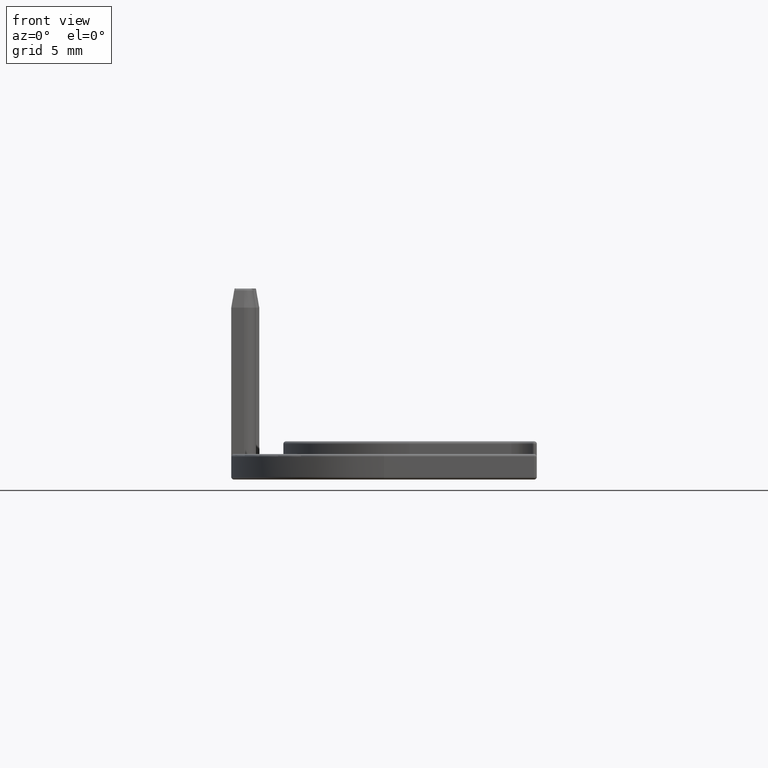
[diagram: clean part render]
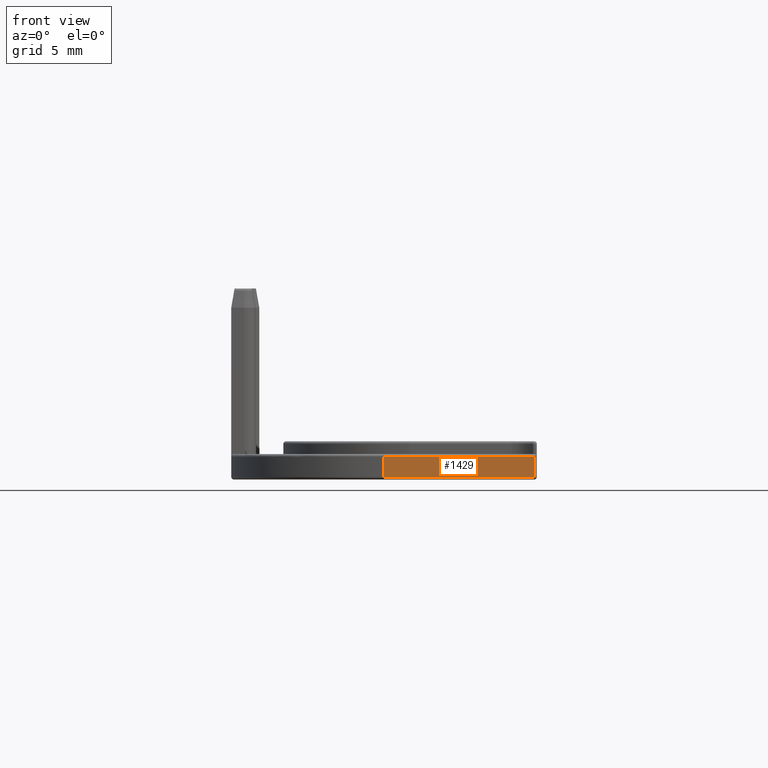
[diagram: same view with one face highlighted and labeled with its STEP entity id]
A machine part, front view. The second image highlights one B-rep face of the part: STEP entity #1429.
In plain terms, the highlighted planar face has unit normal (0, -1, 0).
Its self-contained STEP definition (entity closure, byte-faithful):
#64=PLANE('',#1621);
#164=FACE_OUTER_BOUND('',#253,.T.);
#253=EDGE_LOOP('',(#1296,#1297,#1298,#1299));
#286=LINE('',#2247,#408);
#288=LINE('',#2253,#410);
#295=LINE('',#2266,#417);
#368=LINE('',#2497,#490);
#408=VECTOR('',#1792,10.);
#410=VECTOR('',#1798,10.);
#417=VECTOR('',#1813,10.);
#490=VECTOR('',#2050,10.);
#599=VERTEX_POINT('',#2168);
#605=VERTEX_POINT('',#2182);
#626=VERTEX_POINT('',#2251);
#627=VERTEX_POINT('',#2262);
#767=EDGE_CURVE('',#605,#599,#286,.T.);
#770=EDGE_CURVE('',#626,#605,#288,.T.);
#778=EDGE_CURVE('',#599,#627,#295,.T.);
#889=EDGE_CURVE('',#627,#626,#368,.T.);
#1296=ORIENTED_EDGE('',*,*,#770,.F.);
#1297=ORIENTED_EDGE('',*,*,#889,.F.);
#1298=ORIENTED_EDGE('',*,*,#778,.F.);
#1299=ORIENTED_EDGE('',*,*,#767,.F.);
#1429=ADVANCED_FACE('',(#164),#64,.T.);
#1621=AXIS2_PLACEMENT_3D('',#2518,#2081,#2082);
#1792=DIRECTION('',(0.,0.,-1.));
#1798=DIRECTION('',(1.,3.70074341541719E-16,0.));
#1813=DIRECTION('',(-1.,-3.70074341541719E-16,0.));
#2050=DIRECTION('',(0.,0.,1.));
#2081=DIRECTION('center_axis',(3.70074341541719E-16,-1.,0.));
#2082=DIRECTION('ref_axis',(0.,0.,-1.));
#2168=CARTESIAN_POINT('',(11.8,-25.,0.2));
#2182=CARTESIAN_POINT('',(11.8,-25.,1.8));
#2247=CARTESIAN_POINT('',(11.8,-25.,0.));
#2251=CARTESIAN_POINT('',(-2.22044604925031E-15,-25.,1.8));
#2253=CARTESIAN_POINT('',(6.26278910856847,-25.,1.8));
#2262=CARTESIAN_POINT('',(-2.22044604925031E-15,-25.,0.2));
#2266=CARTESIAN_POINT('',(6.26278910856847,-25.,0.2));
#2497=CARTESIAN_POINT('',(-2.22044604925031E-15,-25.,0.));
#2518=CARTESIAN_POINT('Origin',(12.,-25.,0.));